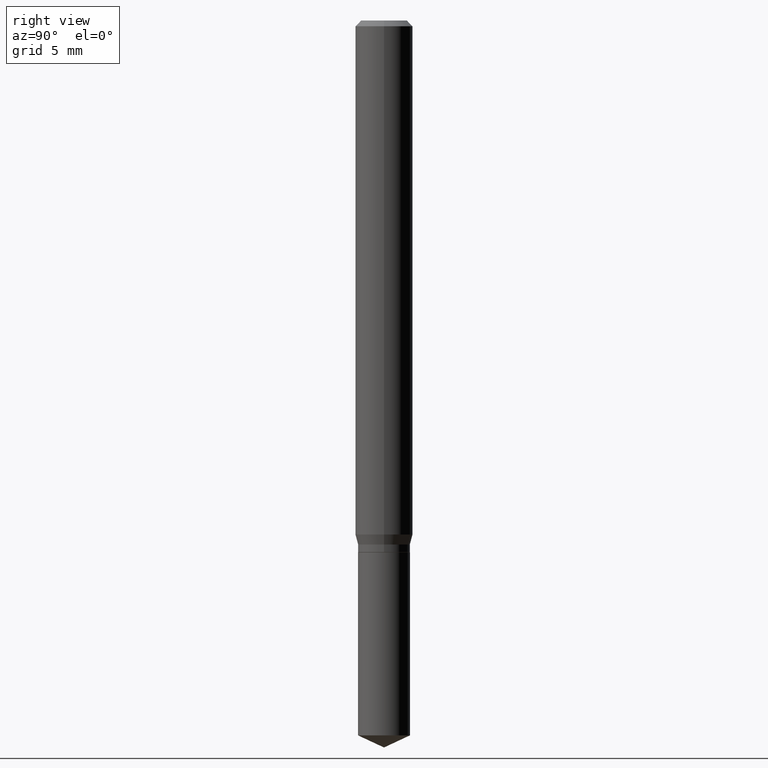
[diagram: clean part render]
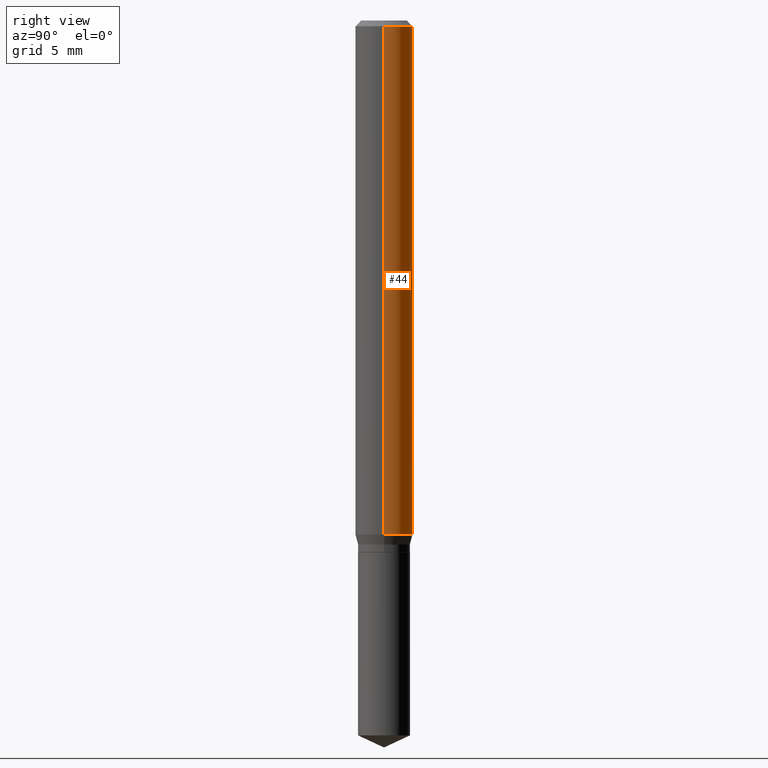
[diagram: same view with one face highlighted and labeled with its STEP entity id]
A machine part, right view. The second image highlights one B-rep face of the part: STEP entity #44.
In plain terms, the highlighted cylindrical surface (edge-blend (fillet) strip) has radius 1.4999 mm, axis along (-0, 0, 1).
Its self-contained STEP definition (entity closure, byte-faithful):
#7 = EDGE_LOOP ( 'NONE', ( #68, #379, #100, #136 ) ) ;
#19 = DIRECTION ( 'NONE',  ( 1.000000000000000000, -6.982962677686265133E-15, 0.000000000000000000 ) ) ;
#28 = EDGE_CURVE ( 'NONE', #97, #208, #337, .T. ) ;
#44 = ADVANCED_FACE ( 'NONE', ( #333 ), #459, .T. ) ;
#60 = VECTOR ( 'NONE', #183, 39.37007874015748143 ) ;
#68 = ORIENTED_EDGE ( 'NONE', *, *, #363, .T. ) ;
#97 = VERTEX_POINT ( 'NONE', #148 ) ;
#100 = ORIENTED_EDGE ( 'NONE', *, *, #384, .F. ) ;
#131 = VERTEX_POINT ( 'NONE', #154 ) ;
#136 = ORIENTED_EDGE ( 'NONE', *, *, #424, .F. ) ;
#143 = CARTESIAN_POINT ( 'NONE',  ( 0.000000000000000000, 0.000000000000000000, 0.000000000000000000 ) ) ;
#144 = AXIS2_PLACEMENT_3D ( 'NONE', #143, #295, #228 ) ;
#148 = CARTESIAN_POINT ( 'NONE',  ( -0.05905000000000013016, -3.273970868715779481E-15, -1.057873720558370589 ) ) ;
#154 = CARTESIAN_POINT ( 'NONE',  ( 0.05905000000000013016, -4.105890300299494288E-15, -1.057873720558370589 ) ) ;
#159 = CIRCLE ( 'NONE', #182, 0.05904999999999999832 ) ;
#163 = DIRECTION ( 'NONE',  ( 1.000000000000000000, -6.982962677686266711E-15, 0.000000000000000000 ) ) ;
#181 = AXIS2_PLACEMENT_3D ( 'NONE', #241, #391, #19 ) ;
#182 = AXIS2_PLACEMENT_3D ( 'NONE', #193, #354, #163 ) ;
#183 = DIRECTION ( 'NONE',  ( -2.445468806185136877E-29, 3.491481338843145188E-15, 1.000000000000000000 ) ) ;
#193 = CARTESIAN_POINT ( 'NONE',  ( 2.888098660104664204E-31, -4.123439461173780263E-17, -0.01181000000000007218 ) ) ;
#198 = LINE ( 'NONE', #319, #386 ) ;
#208 = VERTEX_POINT ( 'NONE', #431 ) ;
#228 = DIRECTION ( 'NONE',  ( 1.000000000000000000, -6.982962677686266711E-15, 4.876176775795936353E-29 ) ) ;
#233 = CARTESIAN_POINT ( 'NONE',  ( 0.05904999999999999832, -4.535783407291118600E-16, -0.01181000000000007218 ) ) ;
#241 = CARTESIAN_POINT ( 'NONE',  ( 2.586997184508507424E-29, -3.693546354182119368E-15, -1.057873720558370589 ) ) ;
#295 = DIRECTION ( 'NONE',  ( -2.445468806185136597E-29, 3.491481338843145583E-15, 1.000000000000000000 ) ) ;
#319 = CARTESIAN_POINT ( 'NONE',  ( 0.05905000000000006771, -4.123439461173745257E-16, 2.879382386107503723E-30 ) ) ;
#333 = FACE_OUTER_BOUND ( 'NONE', #7, .T. ) ;
#337 = LINE ( 'NONE', #376, #60 ) ;
#354 = DIRECTION ( 'NONE',  ( -2.445468806185136597E-29, 3.491481338843145583E-15, 1.000000000000000000 ) ) ;
#363 = EDGE_CURVE ( 'NONE', #131, #97, #404, .T. ) ;
#376 = CARTESIAN_POINT ( 'NONE',  ( -0.05905000000000006771, 4.195754854663396409E-16, -2.904631170795525045E-30 ) ) ;
#379 = ORIENTED_EDGE ( 'NONE', *, *, #28, .T. ) ;
#381 = VERTEX_POINT ( 'NONE', #233 ) ;
#384 = EDGE_CURVE ( 'NONE', #381, #208, #159, .T. ) ;
#386 = VECTOR ( 'NONE', #387, 39.37007874015748143 ) ;
#387 = DIRECTION ( 'NONE',  ( -2.445468806185136877E-29, 3.491481338843145188E-15, 1.000000000000000000 ) ) ;
#391 = DIRECTION ( 'NONE',  ( -2.445468806185136597E-29, 3.491481338843145583E-15, 1.000000000000000000 ) ) ;
#404 = CIRCLE ( 'NONE', #181, 0.05905000000000013016 ) ;
#424 = EDGE_CURVE ( 'NONE', #131, #381, #198, .T. ) ;
#431 = CARTESIAN_POINT ( 'NONE',  ( -0.05904999999999999832, -1.447814888930588267E-15, -0.01181000000000007218 ) ) ;
#459 = CYLINDRICAL_SURFACE ( 'NONE', #144, 0.05905000000000006771 ) ;